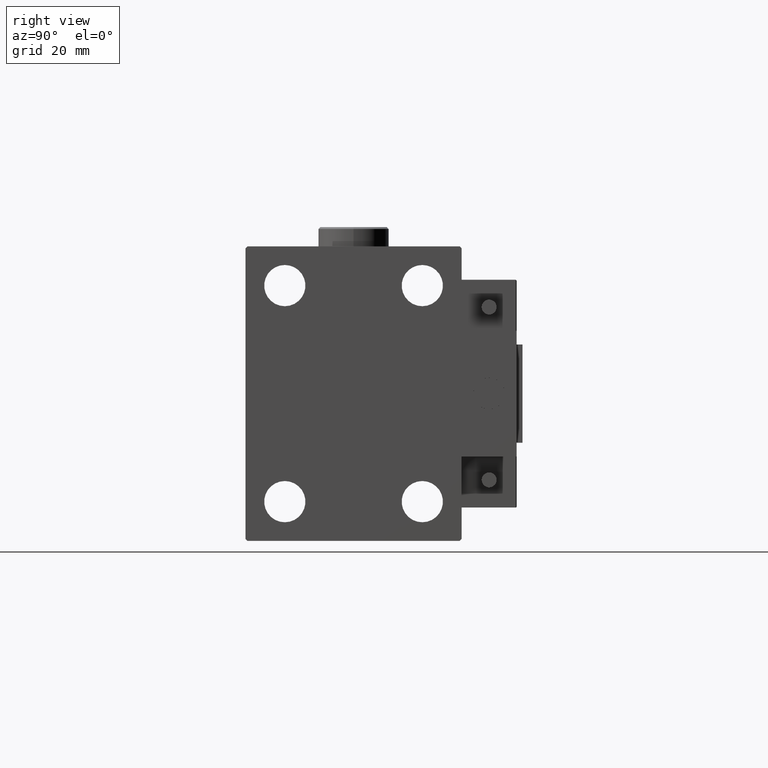
[diagram: clean part render]
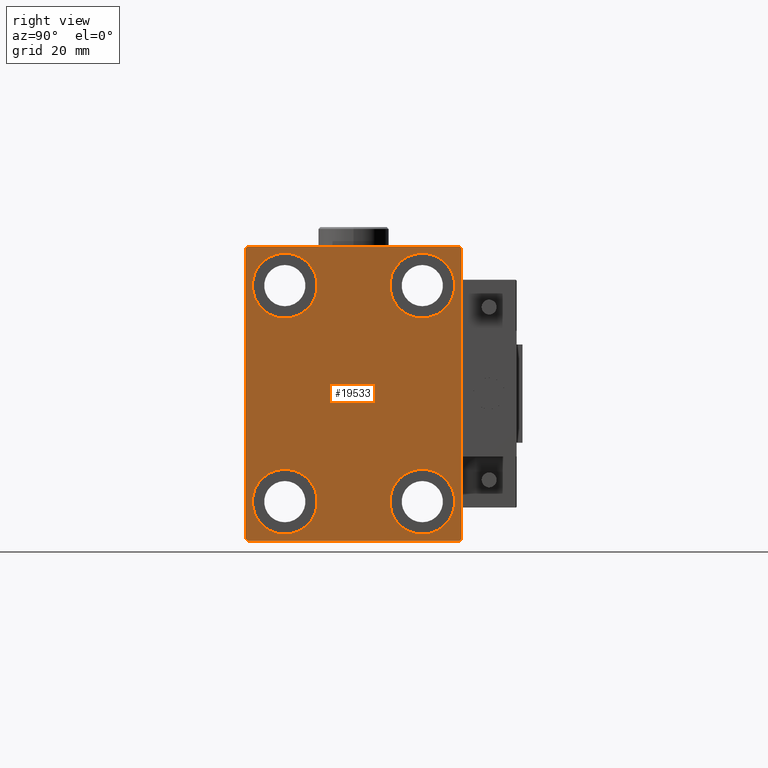
[diagram: same view with one face highlighted and labeled with its STEP entity id]
A machine part, right view. The second image highlights one B-rep face of the part: STEP entity #19533.
In plain terms, the highlighted planar face has unit normal (1, 0, 0).
Its self-contained STEP definition (entity closure, byte-faithful):
#707 = ORIENTED_EDGE ( 'NONE', *, *, #22415, .T. ) ;
#1188 = ORIENTED_EDGE ( 'NONE', *, *, #42510, .T. ) ;
#2039 = EDGE_CURVE ( 'NONE', #36851, #29206, #48310, .T. ) ;
#2266 = EDGE_LOOP ( 'NONE', ( #8456, #29666, #1188, #23303, #27370, #6163, #36575, #12514 ) ) ;
#2418 = LINE ( 'NONE', #50103, #9686 ) ;
#2709 = EDGE_CURVE ( 'NONE', #4282, #10763, #41817, .T. ) ;
#3280 = CARTESIAN_POINT ( 'NONE',  ( 75.00000000000000000, -17.49999999999999645, 35.74999999999999289 ) ) ;
#3417 = CARTESIAN_POINT ( 'NONE',  ( 75.00000000000000000, 27.50000000000000355, -37.50000000000000000 ) ) ;
#3489 = CARTESIAN_POINT ( 'NONE',  ( 75.00000000000000000, 27.49999999999999645, 37.50000000000000711 ) ) ;
#3496 = DIRECTION ( 'NONE',  ( -1.000000000000000000, -0.000000000000000000, -0.000000000000000000 ) ) ;
#3532 = CARTESIAN_POINT ( 'NONE',  ( 75.00000000000000000, 17.49999999999999645, -27.50000000000000355 ) ) ;
#3544 = CARTESIAN_POINT ( 'NONE',  ( 75.00000000000000000, -17.50000000000000355, -27.50000000000000355 ) ) ;
#3764 = FACE_BOUND ( 'NONE', #24018, .T. ) ;
#4069 = CARTESIAN_POINT ( 'NONE',  ( 75.00000000000000000, -17.50000000000000355, -35.75000000000000711 ) ) ;
#4261 = DIRECTION ( 'NONE',  ( 0.000000000000000000, -0.7071067811865474617, -0.7071067811865474617 ) ) ;
#4282 = VERTEX_POINT ( 'NONE', #16033 ) ;
#4313 = LINE ( 'NONE', #8242, #10352 ) ;
#5203 = CARTESIAN_POINT ( 'NONE',  ( 75.00000000000000000, 17.49999999999999645, -19.25000000000000355 ) ) ;
#5680 = AXIS2_PLACEMENT_3D ( 'NONE', #3544, #27490, #40235 ) ;
#5748 = CARTESIAN_POINT ( 'NONE',  ( 75.00000000000000000, -27.00000000000001776, 37.50000000000000000 ) ) ;
#6123 = DIRECTION ( 'NONE',  ( 0.000000000000000000, 0.000000000000000000, 1.000000000000000000 ) ) ;
#6163 = ORIENTED_EDGE ( 'NONE', *, *, #18227, .T. ) ;
#7180 = DIRECTION ( 'NONE',  ( -1.000000000000000000, -0.000000000000000000, -0.000000000000000000 ) ) ;
#7437 = CIRCLE ( 'NONE', #25758, 8.250000000000000000 ) ;
#7451 = EDGE_CURVE ( 'NONE', #50869, #15353, #12875, .T. ) ;
#8026 = CARTESIAN_POINT ( 'NONE',  ( 75.00000000000000000, -27.50000000000000355, 37.00000000000001421 ) ) ;
#8187 = CARTESIAN_POINT ( 'NONE',  ( 75.00000000000000000, -32.25000000000000711, 32.25000000000000711 ) ) ;
#8242 = CARTESIAN_POINT ( 'NONE',  ( 75.00000000000000000, -32.25000000000000000, -32.25000000000000000 ) ) ;
#8456 = ORIENTED_EDGE ( 'NONE', *, *, #40531, .T. ) ;
#8673 = LINE ( 'NONE', #3489, #25636 ) ;
#9137 = EDGE_CURVE ( 'NONE', #43193, #22597, #15434, .T. ) ;
#9486 = AXIS2_PLACEMENT_3D ( 'NONE', #17874, #7180, #34788 ) ;
#9553 = CARTESIAN_POINT ( 'NONE',  ( 75.00000000000000000, -17.50000000000000355, -27.50000000000000355 ) ) ;
#9555 = DIRECTION ( 'NONE',  ( 0.000000000000000000, 0.000000000000000000, 1.000000000000000000 ) ) ;
#9686 = VECTOR ( 'NONE', #22691, 1000.000000000000000 ) ;
#10352 = VECTOR ( 'NONE', #15797, 1000.000000000000114 ) ;
#10473 = AXIS2_PLACEMENT_3D ( 'NONE', #27368, #11739, #23691 ) ;
#10570 = CARTESIAN_POINT ( 'NONE',  ( 75.00000000000000000, -17.49999999999999645, 19.25000000000000000 ) ) ;
#10763 = VERTEX_POINT ( 'NONE', #15533 ) ;
#11294 = EDGE_CURVE ( 'NONE', #41064, #17100, #2418, .T. ) ;
#11574 = DIRECTION ( 'NONE',  ( 0.000000000000000000, 0.000000000000000000, 1.000000000000000000 ) ) ;
#11739 = DIRECTION ( 'NONE',  ( -1.000000000000000000, -0.000000000000000000, -0.000000000000000000 ) ) ;
#11834 = DIRECTION ( 'NONE',  ( 0.000000000000000000, 0.000000000000000000, -1.000000000000000000 ) ) ;
#12155 = EDGE_LOOP ( 'NONE', ( #33348, #707 ) ) ;
#12371 = ORIENTED_EDGE ( 'NONE', *, *, #36182, .T. ) ;
#12514 = ORIENTED_EDGE ( 'NONE', *, *, #11294, .T. ) ;
#12578 = DIRECTION ( 'NONE',  ( 0.000000000000000000, -1.000000000000000000, -1.261617073437677999E-16 ) ) ;
#12875 = CIRCLE ( 'NONE', #41994, 8.250000000000000000 ) ;
#12935 = EDGE_LOOP ( 'NONE', ( #49415, #42233 ) ) ;
#13269 = VECTOR ( 'NONE', #15220, 1000.000000000000000 ) ;
#15220 = DIRECTION ( 'NONE',  ( 0.000000000000000000, 0.000000000000000000, -1.000000000000000000 ) ) ;
#15353 = VERTEX_POINT ( 'NONE', #4069 ) ;
#15434 = CIRCLE ( 'NONE', #10473, 8.249999999999992895 ) ;
#15533 = CARTESIAN_POINT ( 'NONE',  ( 75.00000000000000000, 17.50000000000000355, 35.74999999999999289 ) ) ;
#15797 = DIRECTION ( 'NONE',  ( -0.000000000000000000, 0.7071067811865474617, -0.7071067811865474617 ) ) ;
#16033 = CARTESIAN_POINT ( 'NONE',  ( 75.00000000000000000, 17.50000000000000355, 19.25000000000000000 ) ) ;
#16226 = CARTESIAN_POINT ( 'NONE',  ( 75.00000000000000000, -27.50000000000000355, 37.50000000000000000 ) ) ;
#17100 = VERTEX_POINT ( 'NONE', #31988 ) ;
#17620 = CARTESIAN_POINT ( 'NONE',  ( 75.00000000000000000, 17.50000000000000355, 27.49999999999999645 ) ) ;
#17874 = CARTESIAN_POINT ( 'NONE',  ( 75.00000000000000000, 17.50000000000000355, 27.49999999999999645 ) ) ;
#18227 = EDGE_CURVE ( 'NONE', #40796, #21022, #45302, .T. ) ;
#18757 = DIRECTION ( 'NONE',  ( 0.000000000000000000, 1.000000000000000000, 0.000000000000000000 ) ) ;
#19533 = ADVANCED_FACE ( 'NONE', ( #43622, #3764, #47298, #28235, #28483 ), #32385, .T. ) ;
#19618 = LINE ( 'NONE', #16226, #13269 ) ;
#19794 = AXIS2_PLACEMENT_3D ( 'NONE', #30592, #29831, #6123 ) ;
#20041 = DIRECTION ( 'NONE',  ( 0.000000000000000000, -9.251858538542970348E-17, 1.000000000000000000 ) ) ;
#20117 = AXIS2_PLACEMENT_3D ( 'NONE', #39435, #24305, #11834 ) ;
#21022 = VERTEX_POINT ( 'NONE', #24430 ) ;
#22195 = VECTOR ( 'NONE', #18757, 1000.000000000000000 ) ;
#22415 = EDGE_CURVE ( 'NONE', #10763, #4282, #31898, .T. ) ;
#22597 = VERTEX_POINT ( 'NONE', #3280 ) ;
#22691 = DIRECTION ( 'NONE',  ( -0.000000000000000000, -0.7071067811865426878, 0.7071067811865524577 ) ) ;
#23255 = EDGE_CURVE ( 'NONE', #42760, #41970, #4313, .T. ) ;
#23303 = ORIENTED_EDGE ( 'NONE', *, *, #23255, .T. ) ;
#23413 = CARTESIAN_POINT ( 'NONE',  ( 75.00000000000000000, -27.50000000000000355, -37.50000000000000000 ) ) ;
#23520 = CARTESIAN_POINT ( 'NONE',  ( 75.00000000000000000, 17.49999999999999645, -27.50000000000000355 ) ) ;
#23691 = DIRECTION ( 'NONE',  ( 0.000000000000000000, 0.000000000000000000, 1.000000000000000000 ) ) ;
#24018 = EDGE_LOOP ( 'NONE', ( #32685, #12371 ) ) ;
#24305 = DIRECTION ( 'NONE',  ( 1.000000000000000000, 0.000000000000000000, 0.000000000000000000 ) ) ;
#24430 = CARTESIAN_POINT ( 'NONE',  ( 75.00000000000000000, 27.50000000000000355, -37.00000000000000000 ) ) ;
#25462 = DIRECTION ( 'NONE',  ( -0.000000000000000000, 0.7071067811865474617, 0.7071067811865474617 ) ) ;
#25636 = VECTOR ( 'NONE', #12578, 1000.000000000000000 ) ;
#25758 = AXIS2_PLACEMENT_3D ( 'NONE', #23520, #3496, #11574 ) ;
#27091 = EDGE_CURVE ( 'NONE', #48653, #44519, #46939, .T. ) ;
#27368 = CARTESIAN_POINT ( 'NONE',  ( 75.00000000000000000, -17.49999999999999645, 27.49999999999999645 ) ) ;
#27370 = ORIENTED_EDGE ( 'NONE', *, *, #50235, .T. ) ;
#27490 = DIRECTION ( 'NONE',  ( -1.000000000000000000, -0.000000000000000000, -0.000000000000000000 ) ) ;
#27861 = EDGE_CURVE ( 'NONE', #21022, #41064, #51362, .T. ) ;
#28124 = CIRCLE ( 'NONE', #5680, 8.250000000000000000 ) ;
#28235 = FACE_BOUND ( 'NONE', #40546, .T. ) ;
#28483 = FACE_OUTER_BOUND ( 'NONE', #2266, .T. ) ;
#28646 = VECTOR ( 'NONE', #20041, 1000.000000000000000 ) ;
#29206 = VERTEX_POINT ( 'NONE', #8026 ) ;
#29327 = CARTESIAN_POINT ( 'NONE',  ( 75.00000000000000000, -17.50000000000000355, -19.25000000000000355 ) ) ;
#29347 = AXIS2_PLACEMENT_3D ( 'NONE', #17620, #46031, #9555 ) ;
#29666 = ORIENTED_EDGE ( 'NONE', *, *, #2039, .T. ) ;
#29831 = DIRECTION ( 'NONE',  ( -1.000000000000000000, -0.000000000000000000, -0.000000000000000000 ) ) ;
#30260 = CARTESIAN_POINT ( 'NONE',  ( 75.00000000000000000, 27.00000000000000355, -37.50000000000000000 ) ) ;
#30592 = CARTESIAN_POINT ( 'NONE',  ( 75.00000000000000000, -17.49999999999999645, 27.49999999999999645 ) ) ;
#31898 = CIRCLE ( 'NONE', #9486, 8.249999999999992895 ) ;
#31988 = CARTESIAN_POINT ( 'NONE',  ( 75.00000000000000000, 27.00000000000001066, 37.50000000000000711 ) ) ;
#32385 = PLANE ( 'NONE',  #20117 ) ;
#32685 = ORIENTED_EDGE ( 'NONE', *, *, #9137, .T. ) ;
#33348 = ORIENTED_EDGE ( 'NONE', *, *, #2709, .T. ) ;
#33411 = VECTOR ( 'NONE', #25462, 1000.000000000000114 ) ;
#34525 = DIRECTION ( 'NONE',  ( 0.000000000000000000, 0.000000000000000000, 1.000000000000000000 ) ) ;
#34788 = DIRECTION ( 'NONE',  ( 0.000000000000000000, 0.000000000000000000, 1.000000000000000000 ) ) ;
#36182 = EDGE_CURVE ( 'NONE', #22597, #43193, #43148, .T. ) ;
#36575 = ORIENTED_EDGE ( 'NONE', *, *, #27861, .T. ) ;
#36651 = CARTESIAN_POINT ( 'NONE',  ( 75.00000000000000000, 27.49999999999999645, 37.00000000000001421 ) ) ;
#36669 = CARTESIAN_POINT ( 'NONE',  ( 75.00000000000000000, 32.25000000000000000, -32.25000000000000000 ) ) ;
#36851 = VERTEX_POINT ( 'NONE', #5748 ) ;
#37692 = CARTESIAN_POINT ( 'NONE',  ( 75.00000000000000000, -27.00000000000000355, -37.50000000000000000 ) ) ;
#39189 = EDGE_CURVE ( 'NONE', #15353, #50869, #28124, .T. ) ;
#39435 = CARTESIAN_POINT ( 'NONE',  ( 75.00000000000000000, 0.000000000000000000, 0.000000000000000000 ) ) ;
#40108 = VECTOR ( 'NONE', #4261, 1000.000000000000114 ) ;
#40235 = DIRECTION ( 'NONE',  ( 0.000000000000000000, 0.000000000000000000, 1.000000000000000000 ) ) ;
#40531 = EDGE_CURVE ( 'NONE', #17100, #36851, #8673, .T. ) ;
#40546 = EDGE_LOOP ( 'NONE', ( #41955, #50494 ) ) ;
#40796 = VERTEX_POINT ( 'NONE', #30260 ) ;
#41064 = VERTEX_POINT ( 'NONE', #36651 ) ;
#41093 = CARTESIAN_POINT ( 'NONE',  ( 75.00000000000000000, 17.49999999999999645, -35.75000000000000711 ) ) ;
#41817 = CIRCLE ( 'NONE', #29347, 8.249999999999992895 ) ;
#41955 = ORIENTED_EDGE ( 'NONE', *, *, #39189, .T. ) ;
#41970 = VERTEX_POINT ( 'NONE', #37692 ) ;
#41994 = AXIS2_PLACEMENT_3D ( 'NONE', #9553, #46288, #34525 ) ;
#42233 = ORIENTED_EDGE ( 'NONE', *, *, #27091, .T. ) ;
#42471 = EDGE_CURVE ( 'NONE', #44519, #48653, #7437, .T. ) ;
#42510 = EDGE_CURVE ( 'NONE', #29206, #42760, #19618, .T. ) ;
#42760 = VERTEX_POINT ( 'NONE', #50885 ) ;
#43148 = CIRCLE ( 'NONE', #19794, 8.249999999999992895 ) ;
#43193 = VERTEX_POINT ( 'NONE', #10570 ) ;
#43622 = FACE_BOUND ( 'NONE', #12935, .T. ) ;
#44519 = VERTEX_POINT ( 'NONE', #41093 ) ;
#45302 = LINE ( 'NONE', #36669, #33411 ) ;
#46031 = DIRECTION ( 'NONE',  ( -1.000000000000000000, -0.000000000000000000, -0.000000000000000000 ) ) ;
#46288 = DIRECTION ( 'NONE',  ( -1.000000000000000000, -0.000000000000000000, -0.000000000000000000 ) ) ;
#46803 = DIRECTION ( 'NONE',  ( 0.000000000000000000, 0.000000000000000000, 1.000000000000000000 ) ) ;
#46939 = CIRCLE ( 'NONE', #48612, 8.250000000000000000 ) ;
#47161 = LINE ( 'NONE', #23413, #22195 ) ;
#47298 = FACE_BOUND ( 'NONE', #12155, .T. ) ;
#48310 = LINE ( 'NONE', #8187, #40108 ) ;
#48612 = AXIS2_PLACEMENT_3D ( 'NONE', #3532, #50977, #46803 ) ;
#48653 = VERTEX_POINT ( 'NONE', #5203 ) ;
#49415 = ORIENTED_EDGE ( 'NONE', *, *, #42471, .T. ) ;
#50103 = CARTESIAN_POINT ( 'NONE',  ( 75.00000000000000000, 32.25000000000019185, 32.24999999999975131 ) ) ;
#50235 = EDGE_CURVE ( 'NONE', #41970, #40796, #47161, .T. ) ;
#50494 = ORIENTED_EDGE ( 'NONE', *, *, #7451, .T. ) ;
#50869 = VERTEX_POINT ( 'NONE', #29327 ) ;
#50885 = CARTESIAN_POINT ( 'NONE',  ( 75.00000000000000000, -27.50000000000000355, -37.00000000000000000 ) ) ;
#50977 = DIRECTION ( 'NONE',  ( -1.000000000000000000, -0.000000000000000000, -0.000000000000000000 ) ) ;
#51362 = LINE ( 'NONE', #3417, #28646 ) ;